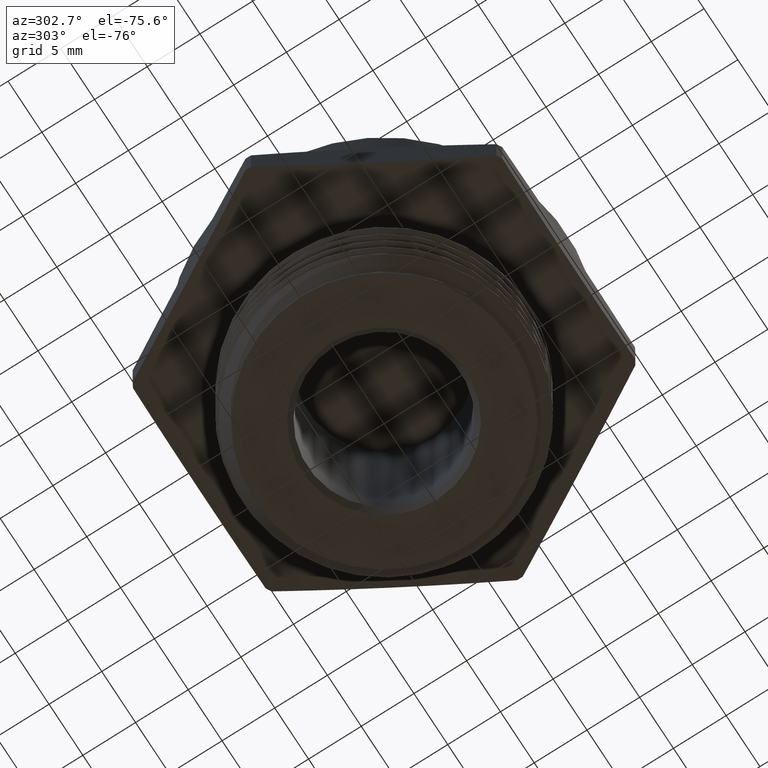
[diagram: clean part render]
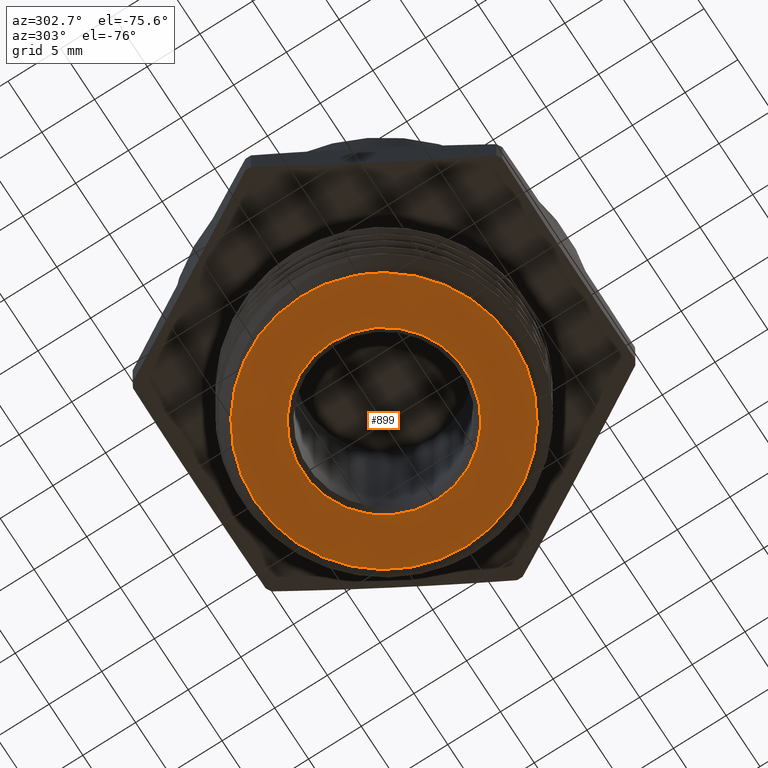
[diagram: same view with one face highlighted and labeled with its STEP entity id]
A machine part, auxiliary view. The second image highlights one B-rep face of the part: STEP entity #899.
In plain terms, the highlighted planar face has unit normal (0, 0, -1).
Its self-contained STEP definition (entity closure, byte-faithful):
#5 = VERTEX_POINT ( 'NONE', #2776 ) ;
#44 = VERTEX_POINT ( 'NONE', #2741 ) ;
#45 = VERTEX_POINT ( 'NONE', #2764 ) ;
#61 = VERTEX_POINT ( 'NONE', #2848 ) ;
#69 = VERTEX_POINT ( 'NONE', #2840 ) ;
#109 = ORIENTED_EDGE ( 'NONE', *, *, #2472, .F. ) ;
#110 = ORIENTED_EDGE ( 'NONE', *, *, #2446, .F. ) ;
#111 = ORIENTED_EDGE ( 'NONE', *, *, #2473, .F. ) ;
#112 = ORIENTED_EDGE ( 'NONE', *, *, #2364, .T. ) ;
#113 = ORIENTED_EDGE ( 'NONE', *, *, #2447, .T. ) ;
#899 = ADVANCED_FACE ( 'NONE', ( #1742, #1739 ), #2810, .T. ) ;
#907 = AXIS2_PLACEMENT_3D ( 'NONE', #2127, #2126, #2125 ) ;
#932 = AXIS2_PLACEMENT_3D ( 'NONE', #3275, #3276, #3277 ) ;
#944 = AXIS2_PLACEMENT_3D ( 'NONE', #1266, #1267, #1268 ) ;
#945 = AXIS2_PLACEMENT_3D ( 'NONE', #1271, #1272, #1273 ) ;
#1266 = CARTESIAN_POINT ( 'NONE',  ( 0.0000000000000000000, 0.0000000000000000000, -0.5799999999999999600 ) ) ;
#1267 = DIRECTION ( 'NONE',  ( -0.0000000000000000000, -0.0000000000000000000, 1.000000000000000000 ) ) ;
#1268 = DIRECTION ( 'NONE',  ( 1.000000000000000000, 0.0000000000000000000, 0.0000000000000000000 ) ) ;
#1271 = CARTESIAN_POINT ( 'NONE',  ( 0.0000000000000000000, 0.0000000000000000000, -0.5799999999999999600 ) ) ;
#1272 = DIRECTION ( 'NONE',  ( -0.0000000000000000000, -0.0000000000000000000, 1.000000000000000000 ) ) ;
#1273 = DIRECTION ( 'NONE',  ( 1.000000000000000000, 0.0000000000000000000, 0.0000000000000000000 ) ) ;
#1652 = EDGE_LOOP ( 'NONE', ( #109, #110, #111 ) ) ;
#1653 = EDGE_LOOP ( 'NONE', ( #112, #113 ) ) ;
#1739 = FACE_BOUND ( 'NONE', #1653, .T. ) ;
#1742 = FACE_OUTER_BOUND ( 'NONE', #1652, .T. ) ;
#1789 = CIRCLE ( 'NONE', #907, 0.3050000000000001600 ) ;
#1872 = CIRCLE ( 'NONE', #932, 0.3050000000000001600 ) ;
#1893 = CIRCLE ( 'NONE', #945, 0.4816499999999999700 ) ;
#1896 = CIRCLE ( 'NONE', #944, 0.4816499999999999700 ) ;
#2125 = DIRECTION ( 'NONE',  ( 1.000000000000000000, 0.0000000000000000000, 0.0000000000000000000 ) ) ;
#2126 = DIRECTION ( 'NONE',  ( -0.0000000000000000000, -0.0000000000000000000, 1.000000000000000000 ) ) ;
#2127 = CARTESIAN_POINT ( 'NONE',  ( 0.0000000000000000000, 0.0000000000000000000, -0.5799999999999998500 ) ) ;
#2215 = B_SPLINE_CURVE_WITH_KNOTS ( 'NONE', 3,
 ( #3235, #3234, #3252, #3253, #3254, #3255, #3256, #3257, #3258, #3259, #3260, #3261, #3262, #3263, #3264, #3265, #3266, #3267, #3268, #3269, #3270, #3271, #3272, #3273, #3274 ),
 .UNSPECIFIED., .F., .F.,
 ( 4, 2, 2, 2, 1, 2, 2, 2, 2, 2, 2, 2, 4 ),
 ( 0.0000000000000000000, 0.002417358866381754600, 0.004834717732763509300, 0.006043397165954388100, 0.007252076599145265200, 0.008460756032336144000, 0.009669435465527020200, 0.01208679433190877600, 0.01329547376509965200, 0.01450415319829052900, 0.01692151206467228500, 0.01813019149786316400, 0.01933887093105404000 ),
 .UNSPECIFIED. ) ;
#2364 = EDGE_CURVE ( 'NONE', #45, #44, #1789, .T. ) ;
#2446 = EDGE_CURVE ( 'NONE', #61, #69, #2215, .T. ) ;
#2447 = EDGE_CURVE ( 'NONE', #44, #45, #1872, .T. ) ;
#2472 = EDGE_CURVE ( 'NONE', #69, #5, #1896, .T. ) ;
#2473 = EDGE_CURVE ( 'NONE', #5, #61, #1893, .T. ) ;
#2482 = AXIS2_PLACEMENT_3D ( 'NONE', #2811, #2813, #2808 ) ;
#2741 = CARTESIAN_POINT ( 'NONE',  ( 0.3050000000000001600, 3.735172737399428900E-017, -0.5799999999999998500 ) ) ;
#2764 = CARTESIAN_POINT ( 'NONE',  ( -0.3050000000000001600, 0.0000000000000000000, -0.5799999999999998500 ) ) ;
#2776 = CARTESIAN_POINT ( 'NONE',  ( 0.4816499999999999700, 0.0000000000000000000, -0.5799999999999999600 ) ) ;
#2808 = DIRECTION ( 'NONE',  ( -1.000000000000000000, 0.0000000000000000000, -0.0000000000000000000 ) ) ;
#2810 = PLANE ( 'NONE',  #2482 ) ;
#2811 = CARTESIAN_POINT ( 'NONE',  ( 0.0000000000000000000, 0.0000000000000000000, -0.5799999999999999600 ) ) ;
#2813 = DIRECTION ( 'NONE',  ( 0.0000000000000000000, 0.0000000000000000000, -1.000000000000000000 ) ) ;
#2840 = CARTESIAN_POINT ( 'NONE',  ( -0.4009595742063897800, -0.2668672747869820200, -0.5799999999999999600 ) ) ;
#2848 = CARTESIAN_POINT ( 'NONE',  ( -0.2675687117050809000, 0.4004918313979491400, -0.5799999999999999600 ) ) ;
#3234 = CARTESIAN_POINT ( 'NONE',  ( -0.2939718568801549200, 0.3828518822514284700, -0.5800000000000000700 ) ) ;
#3235 = CARTESIAN_POINT ( 'NONE',  ( -0.2675687117050809000, 0.4004918313979491400, -0.5799999999999999600 ) ) ;
#3252 = CARTESIAN_POINT ( 'NONE',  ( -0.3185910458147805400, 0.3625874935459024200, -0.5799999999999998500 ) ) ;
#3253 = CARTESIAN_POINT ( 'NONE',  ( -0.3629129892142140000, 0.3182202181019603300, -0.5799999999999998500 ) ) ;
#3254 = CARTESIAN_POINT ( 'NONE',  ( -0.3828031594638814900, 0.2940186650971992100, -0.5800000000000000700 ) ) ;
#3255 = CARTESIAN_POINT ( 'NONE',  ( -0.4091524503548327800, 0.2546185830294077100, -0.5799999999999999600 ) ) ;
#3256 = CARTESIAN_POINT ( 'NONE',  ( -0.4173371658817603400, 0.2409646020899660100, -0.5799999999999997400 ) ) ;
#3257 = CARTESIAN_POINT ( 'NONE',  ( -0.4321728596394882000, 0.2132155455815144000, -0.5799999999999998500 ) ) ;
#3258 = CARTESIAN_POINT ( 'NONE',  ( -0.4455781153361982300, 0.1848799516094688000, -0.5799999999999992900 ) ) ;
#3259 = CARTESIAN_POINT ( 'NONE',  ( -0.4561666193968391700, 0.1553893755342357100, -0.5800000000000001800 ) ) ;
#3260 = CARTESIAN_POINT ( 'NONE',  ( -0.4653281852671432000, 0.1253136970839488200, -0.5800000000000004000 ) ) ;
#3261 = CARTESIAN_POINT ( 'NONE',  ( -0.4692102225133172900, 0.1099032189025454700, -0.5800000000000000700 ) ) ;
#3262 = CARTESIAN_POINT ( 'NONE',  ( -0.4785103703173336800, 0.06336765534023336400, -0.5800000000000000700 ) ) ;
#3263 = CARTESIAN_POINT ( 'NONE',  ( -0.4815945787561573500, 0.03218251484198148000, -0.5799999999999998500 ) ) ;
#3264 = CARTESIAN_POINT ( 'NONE',  ( -0.4816766108051689400, -0.01483063098672727700, -0.5799999999999997400 ) ) ;
#3265 = CARTESIAN_POINT ( 'NONE',  ( -0.4809411326594644800, -0.03054120072476715000, -0.5800000000000001800 ) ) ;
#3266 = CARTESIAN_POINT ( 'NONE',  ( -0.4778992717315335700, -0.06204372735376814700, -0.5800000000000000700 ) ) ;
#3267 = CARTESIAN_POINT ( 'NONE',  ( -0.4755918359536996400, -0.07775688534451977200, -0.5799999999999997400 ) ) ;
#3268 = CARTESIAN_POINT ( 'NONE',  ( -0.4664707071316396800, -0.1240154122086238600, -0.5799999999999997400 ) ) ;
#3269 = CARTESIAN_POINT ( 'NONE',  ( -0.4574535484353462500, -0.1539922015029432900, -0.5800000000000000700 ) ) ;
#3270 = CARTESIAN_POINT ( 'NONE',  ( -0.4395057765271308500, -0.1976589260550530300, -0.5800000000000001800 ) ) ;
#3271 = CARTESIAN_POINT ( 'NONE',  ( -0.4327498318495814900, -0.2120507672376189300, -0.5799999999999997400 ) ) ;
#3272 = CARTESIAN_POINT ( 'NONE',  ( -0.4178724710519901600, -0.2400427936614791000, -0.5799999999999997400 ) ) ;
#3273 = CARTESIAN_POINT ( 'NONE',  ( -0.4097564270336772600, -0.2536502838059750400, -0.5799999999999998500 ) ) ;
#3274 = CARTESIAN_POINT ( 'NONE',  ( -0.4009595742063897800, -0.2668672747869820200, -0.5799999999999999600 ) ) ;
#3275 = CARTESIAN_POINT ( 'NONE',  ( 0.0000000000000000000, 0.0000000000000000000, -0.5799999999999998500 ) ) ;
#3276 = DIRECTION ( 'NONE',  ( -0.0000000000000000000, -0.0000000000000000000, 1.000000000000000000 ) ) ;
#3277 = DIRECTION ( 'NONE',  ( 1.000000000000000000, 0.0000000000000000000, 0.0000000000000000000 ) ) ;